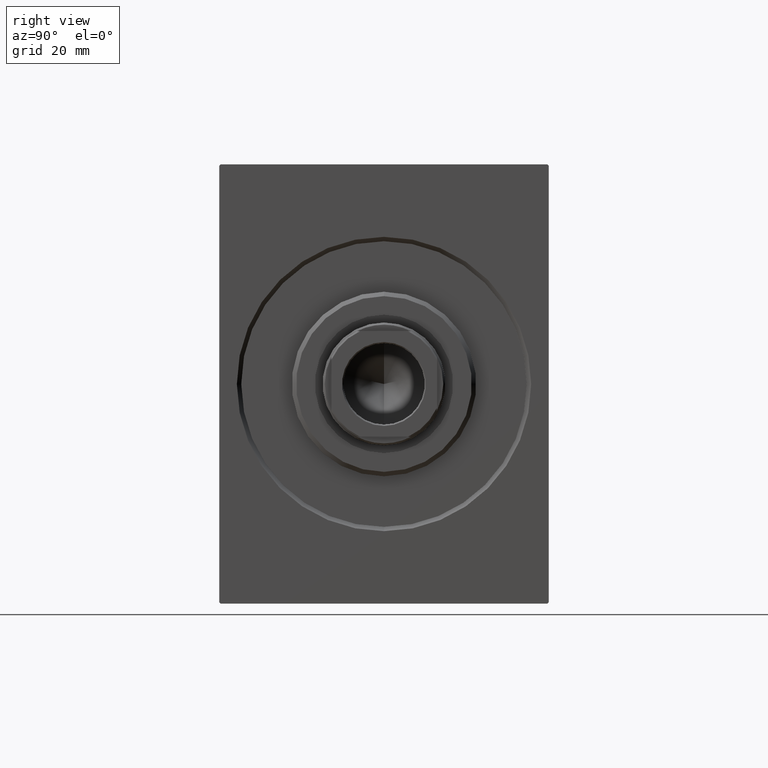
[diagram: clean part render]
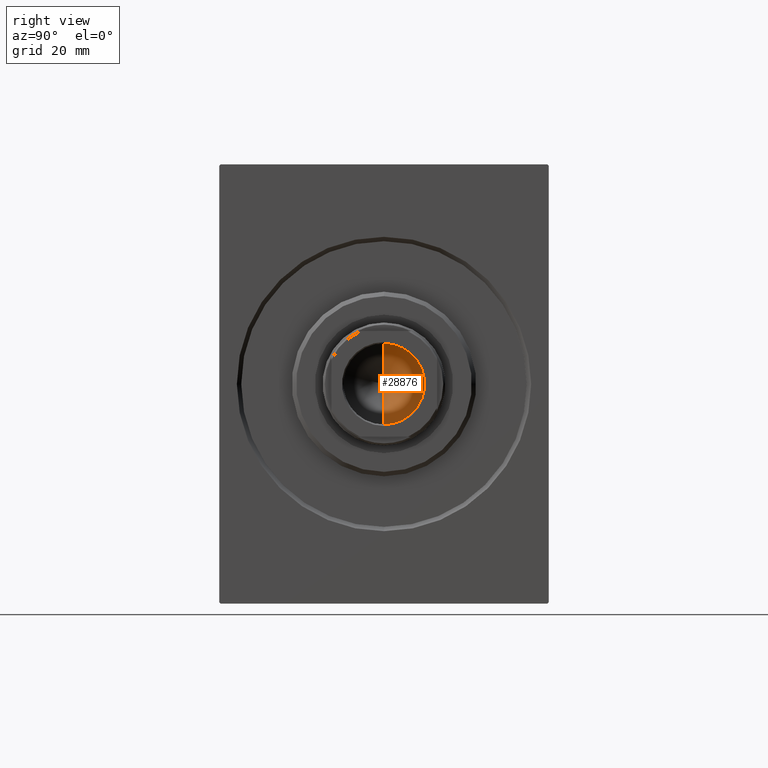
[diagram: same view with one face highlighted and labeled with its STEP entity id]
A machine part, right view. The second image highlights one B-rep face of the part: STEP entity #28876.
In plain terms, the highlighted conical surface has half-angle 59 deg.
Its self-contained STEP definition (entity closure, byte-faithful):
#661 = CARTESIAN_POINT ( 'NONE',  ( -6.793016015247754405E-15, 0.000000000000000000, 65.44203927399505005 ) ) ;
#933 = EDGE_LOOP ( 'NONE', ( #29458, #1580, #1448 ) ) ;
#1448 = ORIENTED_EDGE ( 'NONE', *, *, #18291, .T. ) ;
#1580 = ORIENTED_EDGE ( 'NONE', *, *, #18565, .T. ) ;
#2093 = LINE ( 'NONE', #22203, #3952 ) ;
#3833 = CARTESIAN_POINT ( 'NONE',  ( 0.000000000000000000, 0.000000000000000000, 71.00000000000001421 ) ) ;
#3952 = VECTOR ( 'NONE', #35438, 1000.000000000000000 ) ;
#10919 = DIRECTION ( 'NONE',  ( -0.8571673007021113344, 1.049727191138617463E-16, 0.5150380749100558209 ) ) ;
#13997 = DIRECTION ( 'NONE',  ( 1.000000000000000000, 0.000000000000000000, 0.000000000000000000 ) ) ;
#18291 = EDGE_CURVE ( 'NONE', #19027, #33017, #25428, .T. ) ;
#18565 = EDGE_CURVE ( 'NONE', #25278, #19027, #2093, .T. ) ;
#19027 = VERTEX_POINT ( 'NONE', #37213 ) ;
#22157 = CONICAL_SURFACE ( 'NONE', #33228, 9.249999999999994671, 1.029744258676652535 ) ;
#22203 = CARTESIAN_POINT ( 'NONE',  ( 9.249999999999994671, 0.000000000000000000, 71.00000000000001421 ) ) ;
#25278 = VERTEX_POINT ( 'NONE', #661 ) ;
#25428 = CIRCLE ( 'NONE', #41320, 9.249999999999994671 ) ;
#25498 = DIRECTION ( 'NONE',  ( 1.000000000000000000, 0.000000000000000000, 0.000000000000000000 ) ) ;
#27012 = DIRECTION ( 'NONE',  ( -0.000000000000000000, -0.000000000000000000, 1.000000000000000000 ) ) ;
#27023 = VECTOR ( 'NONE', #10919, 1000.000000000000000 ) ;
#27627 = LINE ( 'NONE', #40836, #27023 ) ;
#28756 = CARTESIAN_POINT ( 'NONE',  ( 0.000000000000000000, 0.000000000000000000, 71.00000000000001421 ) ) ;
#28876 = ADVANCED_FACE ( 'NONE', ( #38058 ), #22157, .F. ) ;
#29274 = EDGE_CURVE ( 'NONE', #25278, #33017, #27627, .T. ) ;
#29458 = ORIENTED_EDGE ( 'NONE', *, *, #29274, .F. ) ;
#33017 = VERTEX_POINT ( 'NONE', #36269 ) ;
#33228 = AXIS2_PLACEMENT_3D ( 'NONE', #28756, #38708, #25498 ) ;
#35438 = DIRECTION ( 'NONE',  ( 0.8571673007021113344, 0.000000000000000000, 0.5150380749100558209 ) ) ;
#36269 = CARTESIAN_POINT ( 'NONE',  ( -9.249999999999994671, 1.132798289211300909E-15, 71.00000000000001421 ) ) ;
#37213 = CARTESIAN_POINT ( 'NONE',  ( 9.249999999999994671, 0.000000000000000000, 71.00000000000001421 ) ) ;
#38058 = FACE_OUTER_BOUND ( 'NONE', #933, .T. ) ;
#38708 = DIRECTION ( 'NONE',  ( -0.000000000000000000, -0.000000000000000000, 1.000000000000000000 ) ) ;
#40836 = CARTESIAN_POINT ( 'NONE',  ( -9.249999999999994671, 1.132798289211300909E-15, 71.00000000000001421 ) ) ;
#41320 = AXIS2_PLACEMENT_3D ( 'NONE', #3833, #27012, #13997 ) ;